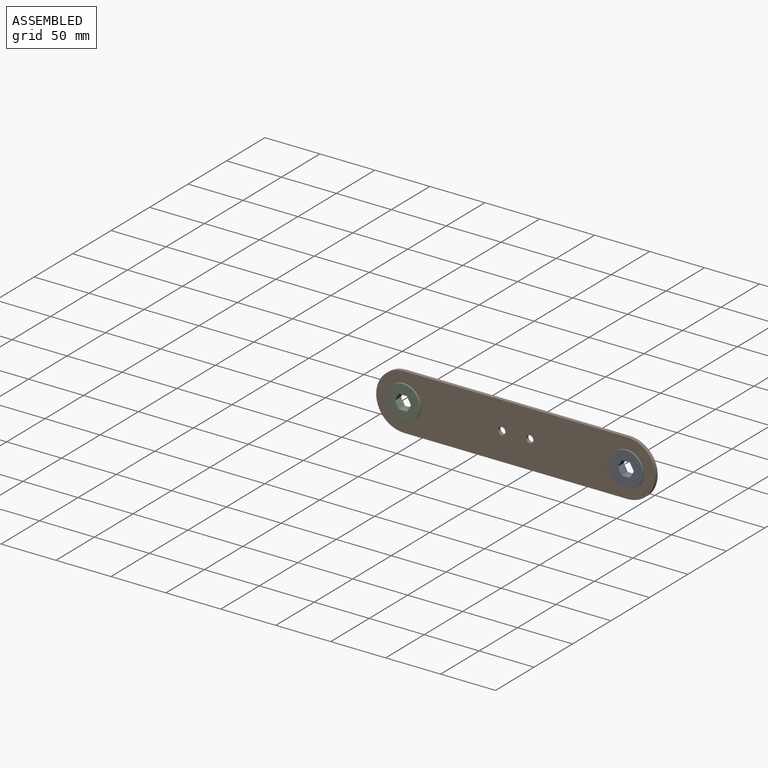
[diagram: assembled view]
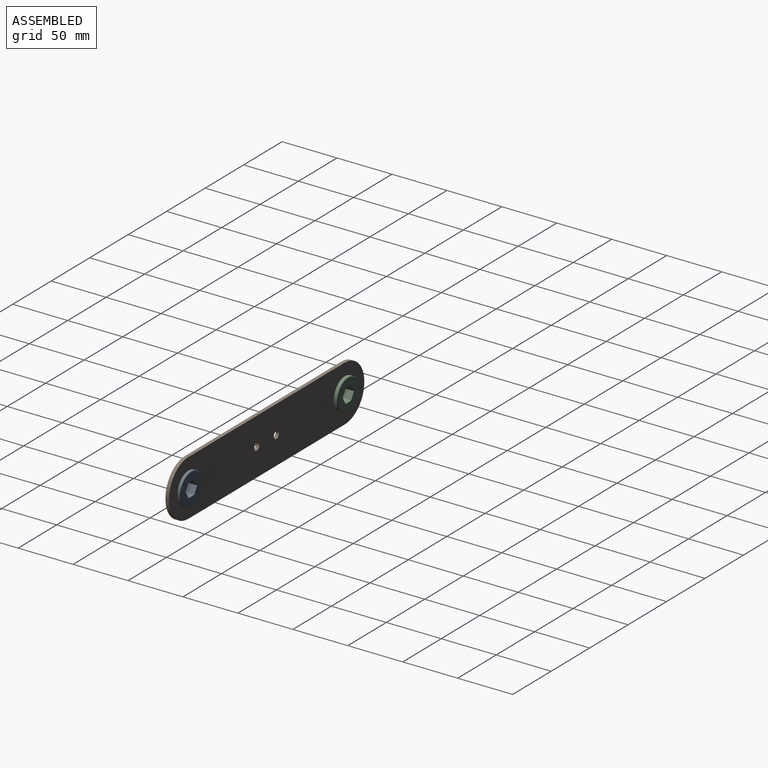
[diagram: assembled view, second angle]
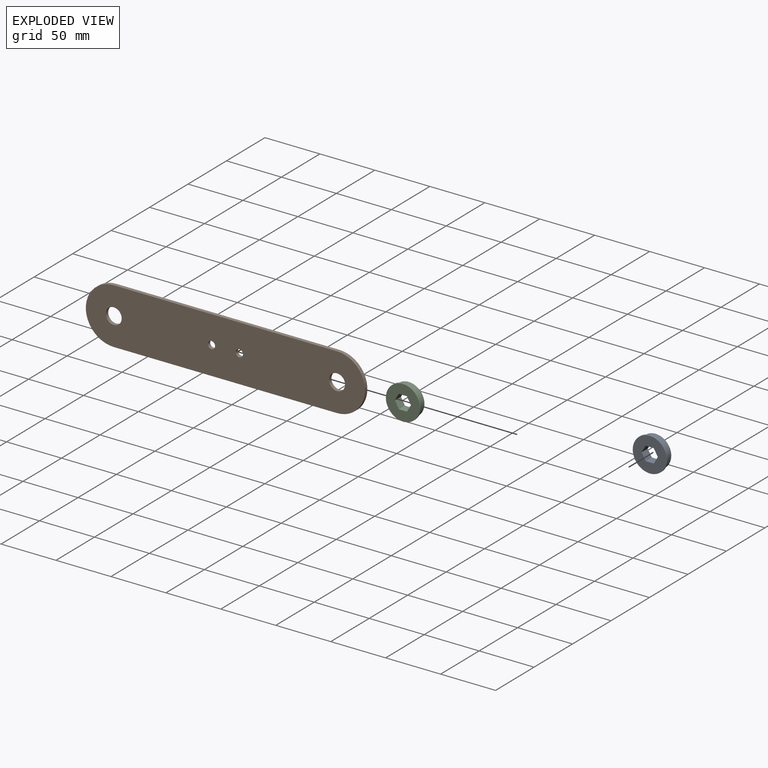
[diagram: exploded view]
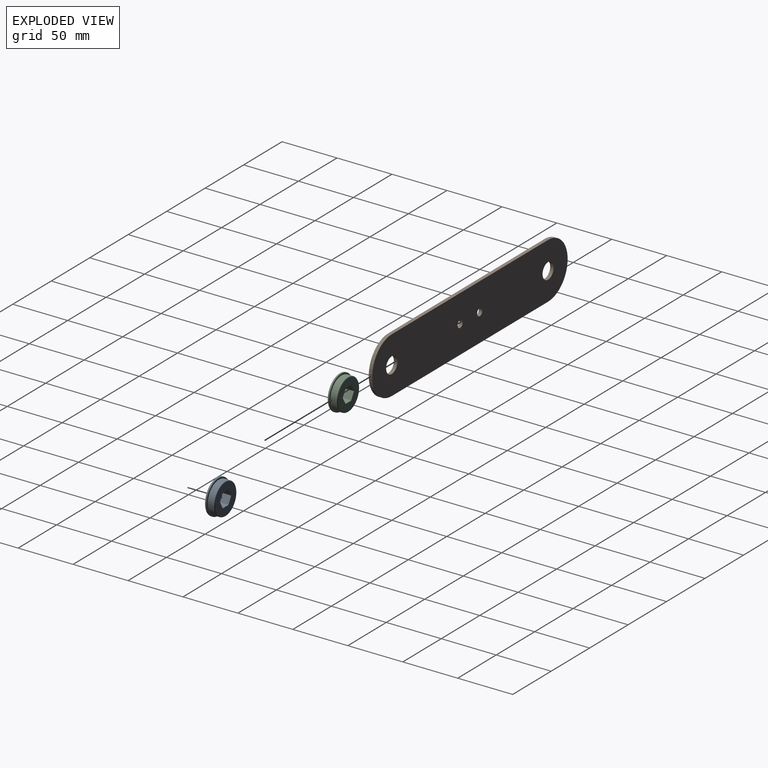
[diagram: exploded view, second angle]
ASSEMBLY  parts=3 mates=2
PART A: 22 faces, bbox 31.1x31.1x7.9 mm
  f0: cylinder r=0.2mm len=7.93mm, axis (0,0,1), area 1.7mm2, adj f7,f8,f14,f15
  f1: torus R=13.78mm, axis (0,0,-1), area 70.7mm2, adj f5,f8
  f2: cone r=15.56mm half-angle=45deg, axis (0,0,-1), area 17.5mm2, adj f6,f7
  f3: cone r=15.43mm half-angle=45deg, axis (0,0,1), area 17.5mm2, adj f6,f10
  f4: cylinder r=13.97mm len=27.94mm, axis (0,0,-1), area 44.6mm2, adj f9,f10
  f5: cylinder r=14.29mm len=28.58mm, axis (0,0,-1), area 483.6mm2, adj f1,f9
  f6: cylinder r=15.56mm len=31.12mm, axis (0,0,-1), area 124.1mm2, adj f2,f3
  f7: plane 30.86x30.86mm, normal (0,0,1), area 608.3mm2, adj f0,f2,f11,f12,f13,f14,f15,f16
  f8: plane 27.56x27.56mm, normal (0,0,-1), area 456.8mm2, adj f0,f1,f11,f12,f13,f14,f15,f16
  f9: plane 28.58x28.58mm, normal (0,0,1), area 28.2mm2, adj f4,f5
  f10: plane 30.86x30.86mm, normal (0,0,-1), area 134.9mm2, adj f3,f4
  f11: plane 7.93x6.15mm, normal (0.87,-0.5,0), area 56.3mm2, adj f7,f8,f20,f21
  f12: plane 7.93x6.15mm, normal (0.87,0.5,0), area 56.3mm2, adj f7,f8,f19,f20
  f13: plane 7.93x7.1mm, normal (0,1,0), area 56.3mm2, adj f7,f8,f18,f19
  f14: plane 7.93x6.15mm, normal (-0.87,0.5,0), area 56.3mm2, adj f0,f7,f8,f18
  f15: plane 7.93x6.15mm, normal (-0.87,-0.5,0), area 56.3mm2, adj f0,f7,f8,f17
  f16: plane 7.93x7.1mm, normal (0,-1,0), area 56.3mm2, adj f7,f8,f17,f21
  f17: cylinder r=0.2mm len=7.93mm, axis (0,0,1), area 1.7mm2, adj f7,f8,f15,f16
  f18: cylinder r=0.2mm len=7.93mm, axis (0,0,1), area 1.7mm2, adj f7,f8,f13,f14
  f19: cylinder r=0.2mm len=7.93mm, axis (0,0,1), area 1.7mm2, adj f7,f8,f12,f13
  f20: cylinder r=0.2mm len=7.93mm, axis (0,0,1), area 1.7mm2, adj f7,f8,f11,f12
  f21: cylinder r=0.2mm len=7.93mm, axis (0,0,1), area 1.7mm2, adj f7,f8,f11,f16
PART B: 10 faces, bbox 254x3.2x50.8 mm
  f0: cylinder r=25.4mm len=50.8mm, axis (0,-1,0), area 253.4mm2, adj f1,f5,f8,f9
  f1: plane 203.2x3.18mm, normal (0,0,1), area 645.2mm2, adj f0,f2,f8,f9
  f2: cylinder r=25.4mm len=50.8mm, axis (0,-1,0), area 253.4mm2, adj f1,f5,f8,f9
  f3: cylinder r=3.32mm len=6.65mm, axis (0,-1,0), area 66.3mm2, adj f8,f9
  f4: cylinder r=3.32mm len=6.65mm, axis (0,-1,0), area 66.3mm2, adj f8,f9
  f5: plane 203.2x3.18mm, normal (0,0,-1), area 645.2mm2, adj f0,f2,f8,f9
  f6: cylinder r=7.3mm len=14.61mm, axis (0,-1,0), area 145.7mm2, adj f8,f9
  f7: cylinder r=7.24mm len=14.48mm, axis (0,-1,0), area 144.4mm2, adj f8,f9
  f8: plane 254x50.8mm, normal (0,1,0), area 11947.8mm2, adj f0,f1,f2,f3,f4,f5,f6,f7
  f9: plane 254x50.8mm, normal (0,-1,0), area 11947.8mm2, adj f0,f1,f2,f3,f4,f5,f6,f7
PART C: same geometry as A
PLACE A rot(axis=(1,0,0),90deg) t=(41.69,-18.11,18.25)mm
PLACE B t=(41.69,-20.84,18.25)mm
PLACE C rot(axis=(1,0,0),90deg) t=(-161.51,-17.61,18.25)mm
MATE revolute C.f1 <-> B.f7  axis (0,1,0) through (-161.51,-24.01,18.25)mm
MATE revolute A.f1 <-> B.f6  axis (0,-1,0) through (41.69,-24.01,18.25)mm
